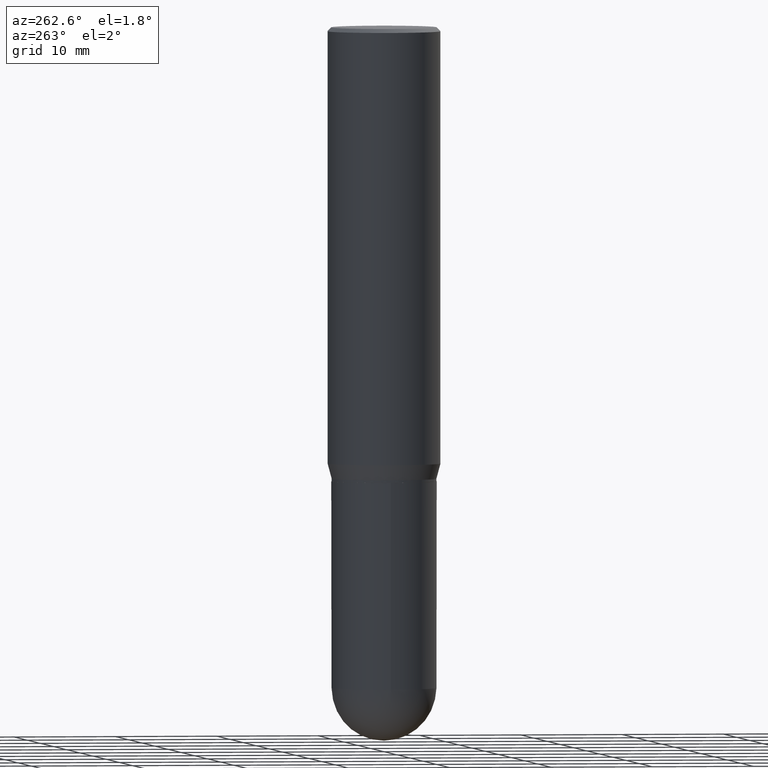
[diagram: clean part render]
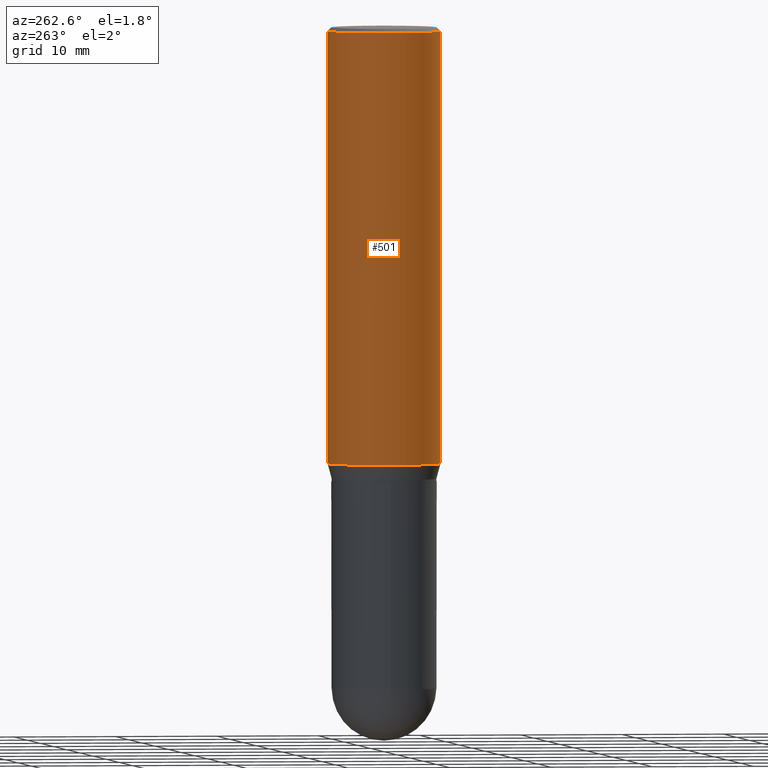
[diagram: same view with one face highlighted and labeled with its STEP entity id]
A machine part, auxiliary view. The second image highlights one B-rep face of the part: STEP entity #501.
In plain terms, the highlighted cylindrical surface (partial cylindrical patch) has radius 5.5562 mm, axis along (-0, 0, 1).
Its self-contained STEP definition (entity closure, byte-faithful):
#3 = CARTESIAN_POINT ( 'NONE',  ( -1.527523085743870054E-15, -0.2187500000000000555, -0.01499999999999934892 ) ) ;
#7 = AXIS2_PLACEMENT_3D ( 'NONE', #382, #28, #419 ) ;
#13 = ORIENTED_EDGE ( 'NONE', *, *, #233, .F. ) ;
#28 = DIRECTION ( 'NONE',  ( -2.445428866101404443E-29, 3.491538535316298316E-15, 1.000000000000000000 ) ) ;
#57 = EDGE_LOOP ( 'NONE', ( #13, #260, #417, #188 ) ) ;
#63 = CYLINDRICAL_SURFACE ( 'NONE', #7, 0.2187500000000000000 ) ;
#83 = DIRECTION ( 'NONE',  ( -6.982962677686265133E-15, -1.000000000000000000, 3.492862791899308071E-15 ) ) ;
#88 = CARTESIAN_POINT ( 'NONE',  ( 1.554312234475260177E-15, 0.2187499999999941436, -1.681593404861547958 ) ) ;
#100 = VECTOR ( 'NONE', #445, 39.37007874015748143 ) ;
#117 = EDGE_CURVE ( 'NONE', #347, #147, #350, .T. ) ;
#135 = VERTEX_POINT ( 'NONE', #88 ) ;
#147 = VERTEX_POINT ( 'NONE', #3 ) ;
#170 = LINE ( 'NONE', #210, #471 ) ;
#188 = ORIENTED_EDGE ( 'NONE', *, *, #117, .F. ) ;
#202 = DIRECTION ( 'NONE',  ( -2.445428866101404443E-29, 3.491538535316298316E-15, 1.000000000000000000 ) ) ;
#210 = CARTESIAN_POINT ( 'NONE',  ( 1.554312234475218762E-15, 0.2187500000000000000, -7.637740546004402196E-16 ) ) ;
#214 = DIRECTION ( 'NONE',  ( -2.445428866101404162E-29, 3.491538535316297921E-15, 1.000000000000000000 ) ) ;
#231 = CIRCLE ( 'NONE', #343, 0.2187500000000000000 ) ;
#233 = EDGE_CURVE ( 'NONE', #135, #347, #170, .T. ) ;
#257 = AXIS2_PLACEMENT_3D ( 'NONE', #469, #202, #83 ) ;
#260 = ORIENTED_EDGE ( 'NONE', *, *, #338, .T. ) ;
#284 = CARTESIAN_POINT ( 'NONE',  ( 1.554312234475260375E-15, 0.2187499999999999167, -0.01500000000000087721 ) ) ;
#285 = CARTESIAN_POINT ( 'NONE',  ( -1.527523085743829428E-15, -0.2187500000000058287, -1.681593404861546404 ) ) ;
#286 = VERTEX_POINT ( 'NONE', #285 ) ;
#293 = EDGE_CURVE ( 'NONE', #286, #147, #366, .T. ) ;
#323 = DIRECTION ( 'NONE',  ( -2.445428866101404443E-29, 3.491538535316298316E-15, 1.000000000000000000 ) ) ;
#338 = EDGE_CURVE ( 'NONE', #135, #286, #231, .T. ) ;
#343 = AXIS2_PLACEMENT_3D ( 'NONE', #373, #323, #481 ) ;
#347 = VERTEX_POINT ( 'NONE', #284 ) ;
#350 = CIRCLE ( 'NONE', #257, 0.2187500000000000000 ) ;
#366 = LINE ( 'NONE', #406, #100 ) ;
#373 = CARTESIAN_POINT ( 'NONE',  ( 4.112217053294172949E-29, -5.871348173807832947E-15, -1.681593404861547070 ) ) ;
#382 = CARTESIAN_POINT ( 'NONE',  ( 0.000000000000000000, 0.000000000000000000, 0.000000000000000000 ) ) ;
#406 = CARTESIAN_POINT ( 'NONE',  ( -1.527523085743870449E-15, -0.2187500000000000000, 7.637740546004402196E-16 ) ) ;
#414 = FACE_OUTER_BOUND ( 'NONE', #57, .T. ) ;
#417 = ORIENTED_EDGE ( 'NONE', *, *, #293, .T. ) ;
#419 = DIRECTION ( 'NONE',  ( -6.982962677686265133E-15, -1.000000000000000000, 3.491538535316298316E-15 ) ) ;
#445 = DIRECTION ( 'NONE',  ( -2.445428866101404162E-29, 3.491538535316297921E-15, 1.000000000000000000 ) ) ;
#469 = CARTESIAN_POINT ( 'NONE',  ( 3.668143299152134304E-31, -5.237307802974486843E-17, -0.01500000000000011394 ) ) ;
#471 = VECTOR ( 'NONE', #214, 39.37007874015748143 ) ;
#481 = DIRECTION ( 'NONE',  ( -6.982962677686265133E-15, -1.000000000000000000, 3.746534391310989557E-15 ) ) ;
#501 = ADVANCED_FACE ( 'NONE', ( #414 ), #63, .T. ) ;